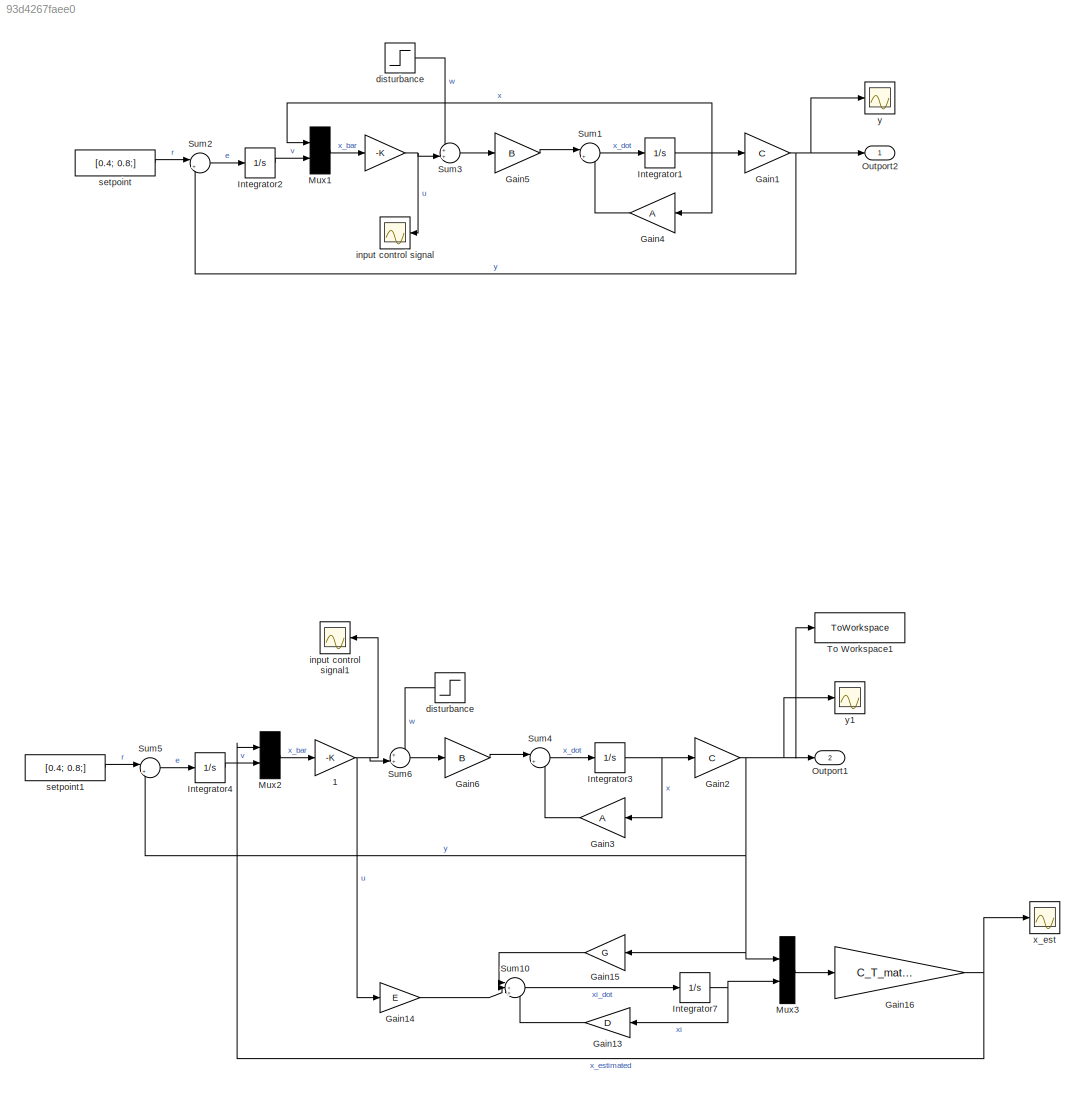
MODEL slx_93d4267faee0
KIND model
CONFIG AbsTol = auto
CONFIG EnableMultiTasking = off
CONFIG FixedStep = auto
CONFIG MaxStep = auto
CONFIG MinStep = auto
CONFIG RelTol = 1e-3
CONFIG SampleTimeConstraint = Unconstrained
CONFIG SolverName = VariableStepAuto
CONFIG StartTime = 0.0
CONFIG StopTime = 15
BLOCK [Gain]    
  Gain = -K
  Multiplication = Matrix(K*u)
BLOCK [Gain]    1
  Gain = -K
  Multiplication = Matrix(K*u)
BLOCK [Gain] Gain1
  Gain = C
  Multiplication = Matrix(K*u)
BLOCK [Gain] Gain13
  Gain = D
  Multiplication = Matrix(K*u)
BLOCK [Gain] Gain14
  Gain = E
  Multiplication = Matrix(K*u)
BLOCK [Gain] Gain15
  Gain = G
  Multiplication = Matrix(K*u)
  NameLocation = top
BLOCK [Gain] Gain16
  Gain = C_T_matrix_inv
  Multiplication = Matrix(K*u)
BLOCK [Gain] Gain2
  Gain = C
  Multiplication = Matrix(K*u)
BLOCK [Gain] Gain3
  Gain = A
  Multiplication = Matrix(K*u)
BLOCK [Gain] Gain4
  Gain = A
  Multiplication = Matrix(K*u)
BLOCK [Gain] Gain5
  Gain = B
  Multiplication = Matrix(K*u)
BLOCK [Gain] Gain6
  Gain = B
  Multiplication = Matrix(K*u)
BLOCK [Integrator] Integrator1
BLOCK [Integrator] Integrator2
BLOCK [Integrator] Integrator3
BLOCK [Integrator] Integrator4
BLOCK [Integrator] Integrator7
BLOCK [Mux] Mux1
  DisplayOption = signals
  Inputs = 2
BLOCK [Mux] Mux2
  DisplayOption = signals
  Inputs = 2
BLOCK [Mux] Mux3
  DisplayOption = signals
  Inputs = 2
BLOCK [Outport] Outport1
  Port = 2
BLOCK [Outport] Outport2
BLOCK [Sum] Sum1
  Inputs = |++
BLOCK [Sum] Sum10
  Inputs = |+++
BLOCK [Sum] Sum2
  Inputs = |+-
BLOCK [Sum] Sum3
  Inputs = ++|
  NameLocation = top
BLOCK [Sum] Sum4
  Inputs = |++
BLOCK [Sum] Sum5
  Inputs = |+-
BLOCK [Sum] Sum6
  Inputs = ++|
  NameLocation = top
BLOCK [ToWorkspace] To Workspace1
  FixptAsFi = on
  MaxDataPoints = inf
  SampleTime = -1
  SaveFormat = Timeseries
  VariableName = setpoint_response
BLOCK [Step] disturbance
  After = [0.3; 0.2;]
  Before = [0; 0;]
  SampleTime = 0
  Time = 10
BLOCK [Step] disturbance 
  After = [0.3; 0.2;]
  Before = [0; 0;]
  SampleTime = 0
  Time = 10
BLOCK [Scope] input control signal
  Floating = off
  NumInputPorts = 1
  ScopeSpecificationString = Simulink.scopes.TimeScopeBlockCfg('CurrentConfiguration', extmgr.ConfigurationSet(extmgr.Configuration('Core','General UI',true),extmgr.Configuration('Core','Source UI',true),extmgr.Configuration('Sources','WiredSimulink',true,'DataLoggingVariableName','ScopeData3'),extmgr.Configuration('Visuals','Time Domain',true,'SerializedDisplays',{struct('MinYLimReal','-6.3235','MaxYLimReal','14.36679','YLab...<+1391ch>
BLOCK [Scope] input control signal1
  Floating = off
  NumInputPorts = 1
  ScopeSpecificationString = Simulink.scopes.TimeScopeBlockCfg('CurrentConfiguration', extmgr.ConfigurationSet(extmgr.Configuration('Core','General UI',true),extmgr.Configuration('Core','Source UI',true),extmgr.Configuration('Sources','WiredSimulink',true,'DataLoggingVariableName','ScopeData1'),extmgr.Configuration('Visuals','Time Domain',true,'SerializedDisplays',{struct('MinYLimReal','-8.61363','MaxYLimReal','22.52454','YLa...<+1618ch>
BLOCK [Constant] setpoint
  Value = [0.4; 0.8;]
BLOCK [Constant] setpoint1
  Value = [0.4; 0.8;]
BLOCK [Scope] x_est
  Floating = off
  NumInputPorts = 1
  ScopeSpecificationString = Simulink.scopes.TimeScopeBlockCfg('CurrentConfiguration', extmgr.ConfigurationSet(extmgr.Configuration('Core','General UI',true),extmgr.Configuration('Core','Source UI',true),extmgr.Configuration('Sources','WiredSimulink',true,'DataLoggingVariableName','ScopeData3'),extmgr.Configuration('Visuals','Time Domain',true,'SerializedDisplays',{struct('MinYLimReal','-0.38362','MaxYLimReal','0.86256','YLab...<+1934ch>
BLOCK [Scope] y
  Floating = off
  NumInputPorts = 1
  ScopeSpecificationString = Simulink.scopes.TimeScopeBlockCfg('CurrentConfiguration', extmgr.ConfigurationSet(extmgr.Configuration('Core','General UI',true),extmgr.Configuration('Core','Source UI',true),extmgr.Configuration('Sources','WiredSimulink',true),extmgr.Configuration('Visuals','Time Domain',true,'SerializedDisplays',{struct('MinYLimReal','-0.20532','MaxYLimReal','0.93163','YLabelReal','','MinYLimMag','0.00000','MaxY...<+1364ch>
BLOCK [Scope] y1
  Floating = off
  NumInputPorts = 1
  ScopeSpecificationString = Simulink.scopes.TimeScopeBlockCfg('CurrentConfiguration', extmgr.ConfigurationSet(extmgr.Configuration('Core','General UI',true),extmgr.Configuration('Core','Source UI',true),extmgr.Configuration('Sources','WiredSimulink',true,'DataLoggingVariableName','ScopeData2'),extmgr.Configuration('Visuals','Time Domain',true,'SerializedDisplays',{struct('MinYLimReal','-0.26971','MaxYLimReal','0.97281','YLab...<+1657ch>
NET    1:1 -> Gain14:1, Sum6:2, input control signal1:1
NET    :1 -> Sum3:2, input control signal:1
LINE Gain13:1 -> Sum10:3
LINE Gain14:1 -> Sum10:2
LINE Gain15:1 -> Sum10:1
NET Gain16:1 -> Mux2:1, x_est:1
NET Gain1:1 -> Outport2:1, Sum2:2, y:1
NET Gain2:1 -> Gain15:1, Mux3:1, Outport1:1, Sum5:2, To Workspace1:1, y1:1
LINE Gain3:1 -> Sum4:2
LINE Gain4:1 -> Sum1:2
LINE Gain5:1 -> Sum1:1
LINE Gain6:1 -> Sum4:1
NET Integrator1:1 -> Gain1:1, Gain4:1, Mux1:1
LINE Integrator2:1 -> Mux1:2
NET Integrator3:1 -> Gain2:1, Gain3:1
LINE Integrator4:1 -> Mux2:2
NET Integrator7:1 -> Gain13:1, Mux3:2
LINE Mux1:1 ->    :1
LINE Mux2:1 ->    1:1
LINE Mux3:1 -> Gain16:1
LINE Sum10:1 -> Integrator7:1
LINE Sum1:1 -> Integrator1:1
LINE Sum2:1 -> Integrator2:1
LINE Sum3:1 -> Gain5:1
LINE Sum4:1 -> Integrator3:1
LINE Sum5:1 -> Integrator4:1
LINE Sum6:1 -> Gain6:1
LINE disturbance :1 -> Sum6:1
LINE disturbance:1 -> Sum3:1
LINE setpoint1:1 -> Sum5:1
LINE setpoint:1 -> Sum2:1
note: NET lines group one-source signal fan-out (src -> all destinations, sorted); 1:1 wires keep LINE
